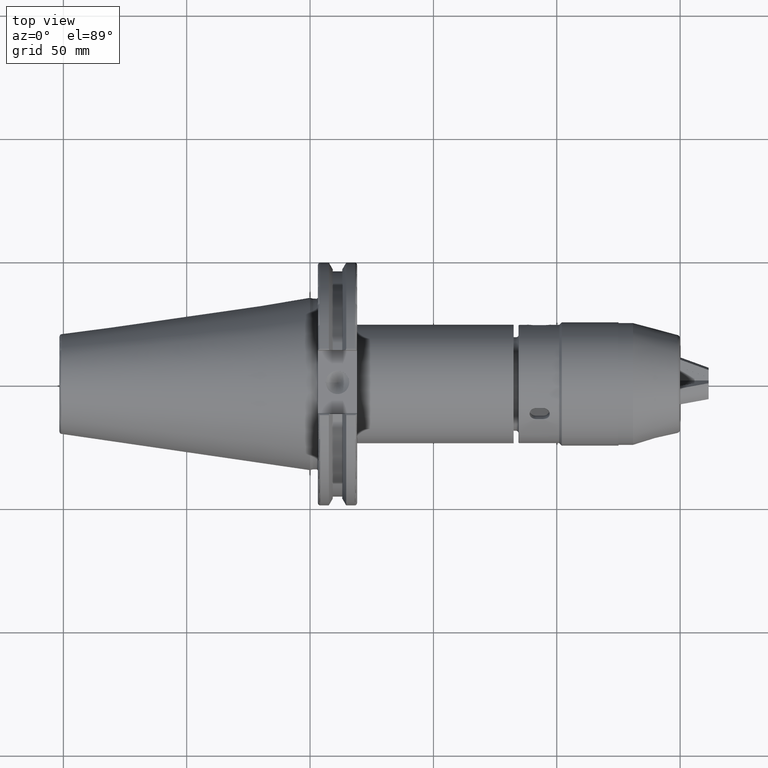
[diagram: clean part render]
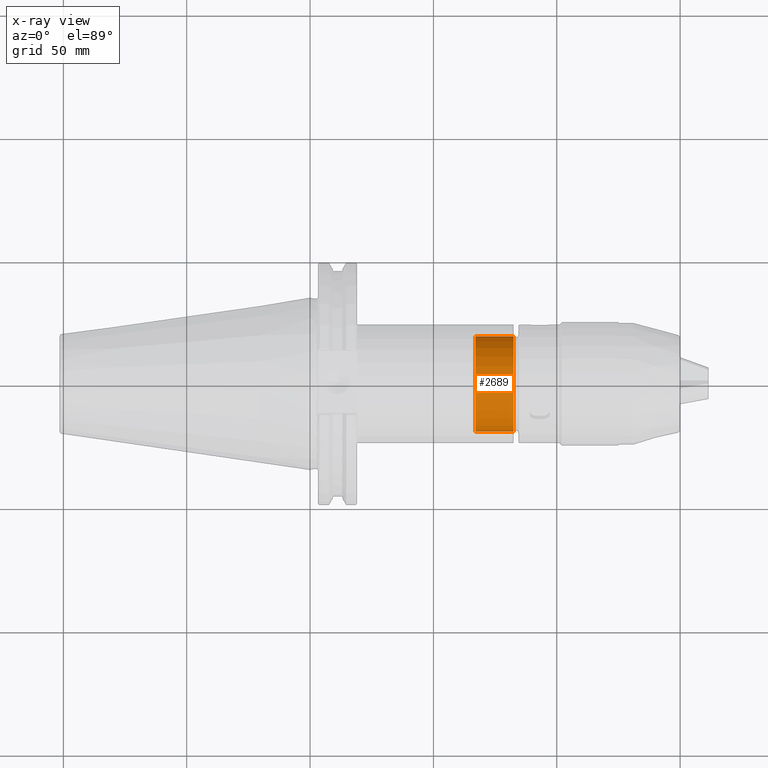
[diagram: x-ray — body ghosted, one internal face saturated and labeled with its STEP entity id]
A machine part, top view, then the same camera in x-ray: the body is ghosted and one INTERNAL B-rep face — a face not visible from any outside direction — is saturated and labeled: STEP entity #2689.
In plain terms, the highlighted cylindrical surface (bore or boss wall) has radius 19.25 mm, axis along (1, 0, 0).
Its self-contained STEP definition (entity closure, byte-faithful):
#537=FACE_OUTER_BOUND('',#691,.T.);
#691=EDGE_LOOP('',(#1966,#1967,#1968,#1969));
#854=LINE('',#4297,#1051);
#1051=VECTOR('',#3429,19.2500000000001);
#1252=CIRCLE('',#3057,19.2500000000001);
#1253=CIRCLE('',#3059,19.2500000000001);
#1363=VERTEX_POINT('',#4293);
#1364=VERTEX_POINT('',#4296);
#1598=EDGE_CURVE('',#1363,#1363,#1252,.T.);
#1599=EDGE_CURVE('',#1363,#1364,#854,.T.);
#1600=EDGE_CURVE('',#1364,#1364,#1253,.T.);
#1966=ORIENTED_EDGE('',*,*,#1598,.T.);
#1967=ORIENTED_EDGE('',*,*,#1599,.T.);
#1968=ORIENTED_EDGE('',*,*,#1600,.F.);
#1969=ORIENTED_EDGE('',*,*,#1599,.F.);
#2649=CYLINDRICAL_SURFACE('',#3058,19.2500000000001);
#2689=ADVANCED_FACE('',(#537),#2649,.F.);
#3057=AXIS2_PLACEMENT_3D('',#4294,#3425,#3426);
#3058=AXIS2_PLACEMENT_3D('',#4295,#3427,#3428);
#3059=AXIS2_PLACEMENT_3D('',#4298,#3430,#3431);
#3425=DIRECTION('center_axis',(1.,0.,0.));
#3426=DIRECTION('ref_axis',(0.,0.,-1.));
#3427=DIRECTION('center_axis',(1.,0.,0.));
#3428=DIRECTION('ref_axis',(0.,1.,0.));
#3429=DIRECTION('',(-1.,0.,0.));
#3430=DIRECTION('center_axis',(1.,0.,0.));
#3431=DIRECTION('ref_axis',(0.,0.,-1.));
#4293=CARTESIAN_POINT('',(82.5,-19.2500000000001,-2.35744508835866E-15));
#4294=CARTESIAN_POINT('Origin',(82.5,0.,0.));
#4295=CARTESIAN_POINT('Origin',(74.75,0.,0.));
#4296=CARTESIAN_POINT('',(67.,-19.2500000000001,-2.35744508835866E-15));
#4297=CARTESIAN_POINT('',(74.75,-19.2500000000001,-2.35744508835866E-15));
#4298=CARTESIAN_POINT('Origin',(67.,0.,0.));